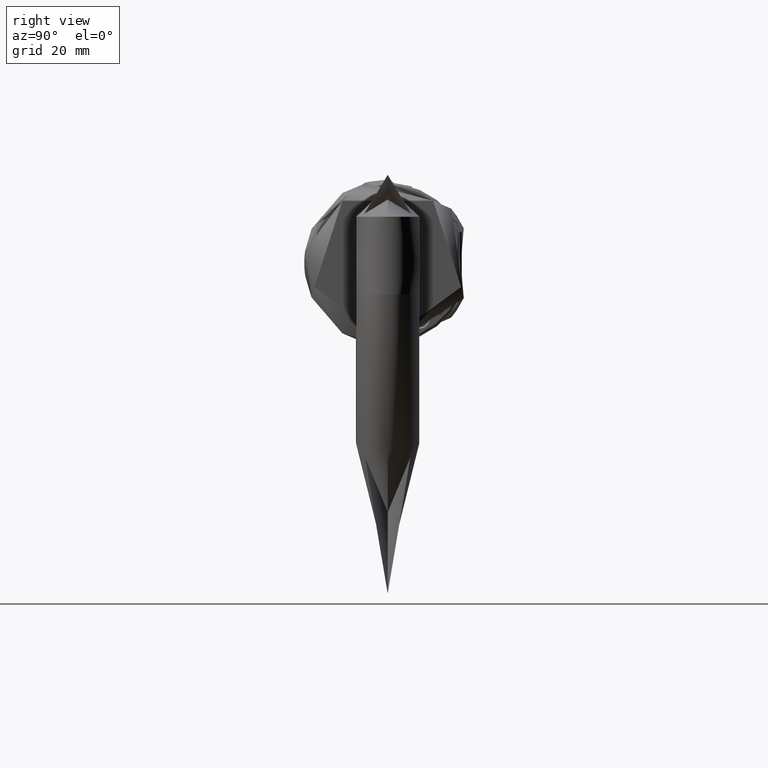
[diagram: clean part render]
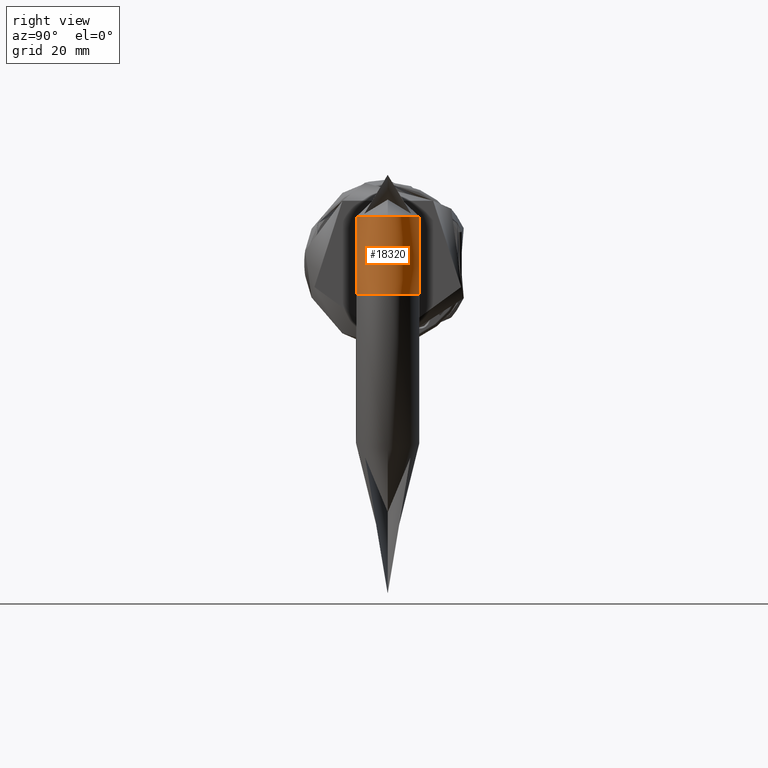
[diagram: same view with one face highlighted and labeled with its STEP entity id]
A machine part, right view. The second image highlights one B-rep face of the part: STEP entity #18320.
In plain terms, the highlighted cylindrical surface (bore or boss wall) has radius 9.8 mm, axis along (-0, -0, -1).
Its self-contained STEP definition (entity closure, byte-faithful):
#242 = CIRCLE ( 'NONE', #2488, 9.800000000000009600 ) ;
#291 = ORIENTED_EDGE ( 'NONE', *, *, #9307, .F. ) ;
#639 = CYLINDRICAL_SURFACE ( 'NONE', #12113, 9.800000000000009600 ) ;
#972 = CARTESIAN_POINT ( 'NONE',  ( 4.637708504262767500, 1.128790321498917500E-032, 40.40000000000005500 ) ) ;
#1301 = ORIENTED_EDGE ( 'NONE', *, *, #7786, .T. ) ;
#1535 = DIRECTION ( 'NONE',  ( 0.0000000000000000000, 3.889170968374258800E-034, 1.000000000000000000 ) ) ;
#1572 = CARTESIAN_POINT ( 'NONE',  ( -15.54070708874365700, -9.800000000000009600, 44.45929291125638400 ) ) ;
#2488 = AXIS2_PLACEMENT_3D ( 'NONE', #6560, #9671, #3456 ) ;
#3201 = CARTESIAN_POINT ( 'NONE',  ( 4.637708504262767500, 0.0000000000000000000, 50.20000000000006700 ) ) ;
#3309 = AXIS2_PLACEMENT_3D ( 'NONE', #3201, #13764, #16822 ) ;
#3420 = EDGE_CURVE ( 'NONE', #9631, #9631, #242, .T. ) ;
#3456 = DIRECTION ( 'NONE',  ( 0.0000000000000000000, 1.151826858672363700E-033, -1.000000000000000000 ) ) ;
#3986 = CARTESIAN_POINT ( 'NONE',  ( -15.54070708874365700, 9.800000000000009600, 44.45929291125638400 ) ) ;
#4732 =( BOUNDED_CURVE ( )  B_SPLINE_CURVE ( 3, ( #16557, #9022, #1572, #13752 ),
 .UNSPECIFIED., .F., .F. ) 
 B_SPLINE_CURVE_WITH_KNOTS ( ( 4, 4 ),
 ( 0.0000000000000000000, 1.570796326794896800 ),
 .UNSPECIFIED. ) 
 CURVE ( )  GEOMETRIC_REPRESENTATION_ITEM ( )  RATIONAL_B_SPLINE_CURVE ( ( 1.000000000000000000, 0.8047378541243649400, 0.8047378541243649400, 1.000000000000000000 ) ) 
 REPRESENTATION_ITEM ( '' )  );
#4837 =( BOUNDED_CURVE ( )  B_SPLINE_CURVE ( 3, ( #19043, #3986, #7101, #19115 ),
 .UNSPECIFIED., .F., .F. ) 
 B_SPLINE_CURVE_WITH_KNOTS ( ( 4, 4 ),
 ( 4.712388980384689700, 6.283185307179586200 ),
 .UNSPECIFIED. ) 
 CURVE ( )  GEOMETRIC_REPRESENTATION_ITEM ( )  RATIONAL_B_SPLINE_CURVE ( ( 1.000000000000000000, 0.8047378541243649400, 0.8047378541243649400, 1.000000000000000000 ) ) 
 REPRESENTATION_ITEM ( '' )  );
#5278 = ORIENTED_EDGE ( 'NONE', *, *, #10214, .T. ) ;
#5864 = EDGE_LOOP ( 'NONE', ( #291 ) ) ;
#5945 =( BOUNDED_CURVE ( )  B_SPLINE_CURVE ( 3, ( #13195, #17906, #8802, #7258 ),
 .UNSPECIFIED., .F., .F. ) 
 B_SPLINE_CURVE_WITH_KNOTS ( ( 4, 4 ),
 ( 4.712388980384689700, 7.853981633974482800 ),
 .UNSPECIFIED. ) 
 CURVE ( )  GEOMETRIC_REPRESENTATION_ITEM ( )  RATIONAL_B_SPLINE_CURVE ( ( 1.000000000000000000, 0.3333333333333333700, 0.3333333333333333700, 1.000000000000000000 ) ) 
 REPRESENTATION_ITEM ( '' )  );
#6560 = CARTESIAN_POINT ( 'NONE',  ( -19.59999999999996600, 0.0000000000000000000, 50.20000000000006700 ) ) ;
#7101 = CARTESIAN_POINT ( 'NONE',  ( -19.59999999999998700, 5.740707088743673300, 40.40000000000004800 ) ) ;
#7258 = CARTESIAN_POINT ( 'NONE',  ( -9.799999999999988300, 9.799999999999997200, 50.20000000000006700 ) ) ;
#7744 = VERTEX_POINT ( 'NONE', #972 ) ;
#7786 = EDGE_CURVE ( 'NONE', #8748, #7925, #5945, .T. ) ;
#7838 = DIRECTION ( 'NONE',  ( -1.000000000000000000, 0.0000000000000000000, -1.848892746611746400E-031 ) ) ;
#7925 = VERTEX_POINT ( 'NONE', #14667 ) ;
#8748 = VERTEX_POINT ( 'NONE', #9533 ) ;
#8802 = CARTESIAN_POINT ( 'NONE',  ( 9.799999999999998900, 9.800000000000006000, 30.60000000000005500 ) ) ;
#8965 = ORIENTED_EDGE ( 'NONE', *, *, #18821, .T. ) ;
#9022 = CARTESIAN_POINT ( 'NONE',  ( -19.59999999999998700, -5.740707088743673300, 40.40000000000004800 ) ) ;
#9307 = EDGE_CURVE ( 'NONE', #7744, #7744, #9343, .T. ) ;
#9343 = CIRCLE ( 'NONE', #3309, 9.800000000000009600 ) ;
#9533 = CARTESIAN_POINT ( 'NONE',  ( -9.799999999999988300, -9.799999999999997200, 50.20000000000006700 ) ) ;
#9631 = VERTEX_POINT ( 'NONE', #13614 ) ;
#9671 = DIRECTION ( 'NONE',  ( 1.000000000000000000, 0.0000000000000000000, -2.775557561562878400E-017 ) ) ;
#10214 = EDGE_CURVE ( 'NONE', #9631, #8748, #4732, .T. ) ;
#12113 = AXIS2_PLACEMENT_3D ( 'NONE', #13840, #7838, #1535 ) ;
#12364 = EDGE_LOOP ( 'NONE', ( #5278, #1301, #8965, #17918 ) ) ;
#13195 = CARTESIAN_POINT ( 'NONE',  ( -9.799999999999988300, -9.799999999999997200, 50.20000000000006700 ) ) ;
#13614 = CARTESIAN_POINT ( 'NONE',  ( -19.59999999999998000, 0.0000000000000000000, 40.39999999999999100 ) ) ;
#13752 = CARTESIAN_POINT ( 'NONE',  ( -9.799999999999988300, -9.799999999999997200, 50.20000000000006700 ) ) ;
#13764 = DIRECTION ( 'NONE',  ( 1.000000000000000000, 0.0000000000000000000, -2.775557561562878400E-017 ) ) ;
#13840 = CARTESIAN_POINT ( 'NONE',  ( 4.637708504262767500, 0.0000000000000000000, 50.20000000000006700 ) ) ;
#14384 = FACE_OUTER_BOUND ( 'NONE', #12364, .T. ) ;
#14667 = CARTESIAN_POINT ( 'NONE',  ( -9.799999999999988300, 9.799999999999997200, 50.20000000000006700 ) ) ;
#16557 = CARTESIAN_POINT ( 'NONE',  ( -19.59999999999998000, 0.0000000000000000000, 40.39999999999999100 ) ) ;
#16822 = DIRECTION ( 'NONE',  ( 0.0000000000000000000, 1.151826858672363700E-033, -1.000000000000000000 ) ) ;
#17906 = CARTESIAN_POINT ( 'NONE',  ( 9.799999999999997200, -9.800000000000011400, 30.60000000000005500 ) ) ;
#17918 = ORIENTED_EDGE ( 'NONE', *, *, #3420, .T. ) ;
#18161 = FACE_OUTER_BOUND ( 'NONE', #5864, .T. ) ;
#18320 = ADVANCED_FACE ( 'NONE', ( #18161, #14384 ), #639, .T. ) ;
#18821 = EDGE_CURVE ( 'NONE', #7925, #9631, #4837, .T. ) ;
#19043 = CARTESIAN_POINT ( 'NONE',  ( -9.799999999999988300, 9.799999999999997200, 50.20000000000006700 ) ) ;
#19115 = CARTESIAN_POINT ( 'NONE',  ( -19.59999999999998000, 0.0000000000000000000, 40.39999999999999100 ) ) ;